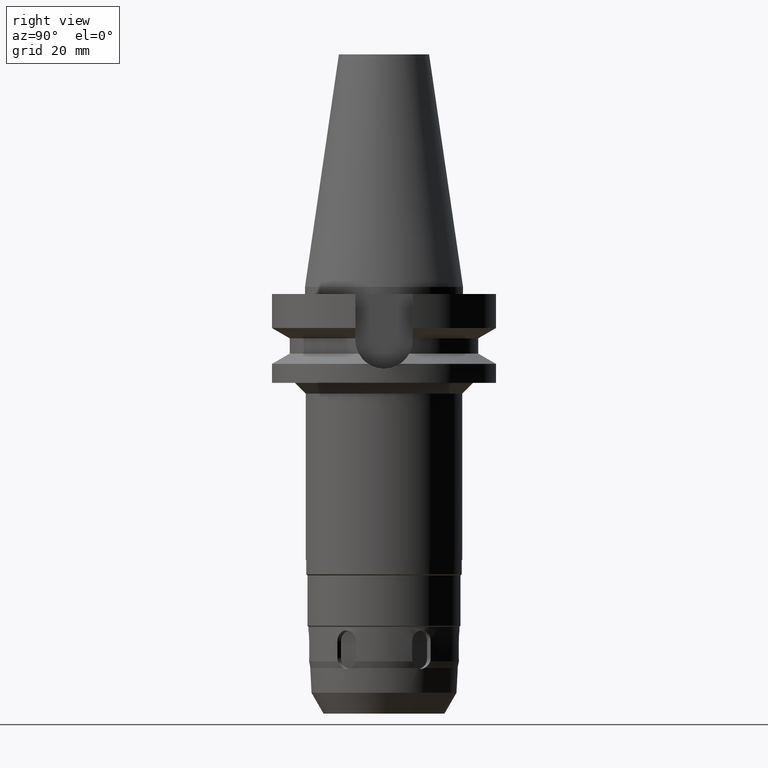
[diagram: clean part render]
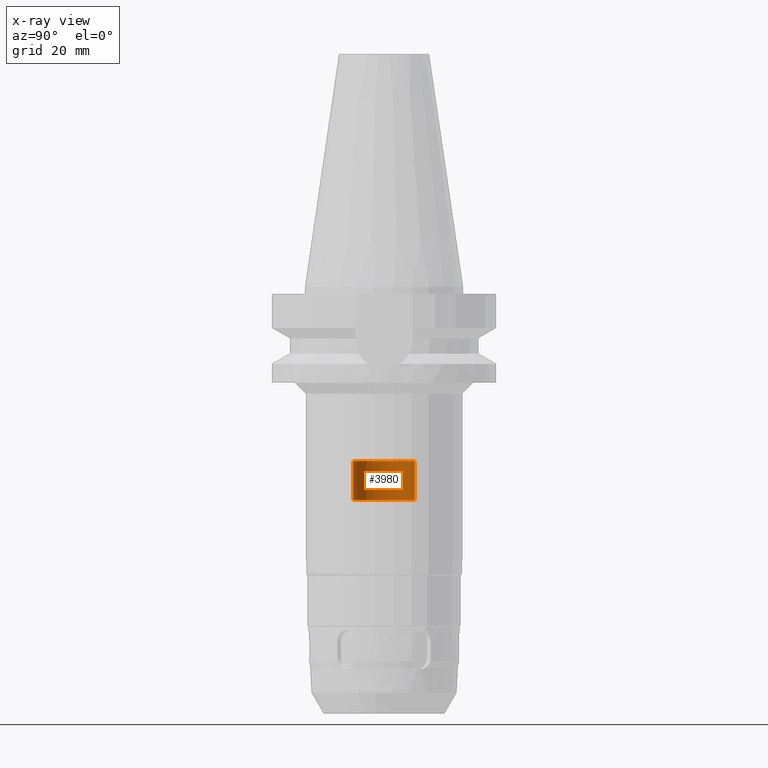
[diagram: x-ray — body ghosted, one internal face saturated and labeled with its STEP entity id]
A machine part, right view, then the same camera in x-ray: the body is ghosted and one INTERNAL B-rep face — a face not visible from any outside direction — is saturated and labeled: STEP entity #3980.
In plain terms, the highlighted cylindrical surface (edge-blend (fillet) strip) has radius 8.7 mm, axis along (0, 0, -1).
Its self-contained STEP definition (entity closure, byte-faithful):
#1993=CARTESIAN_POINT('',(0.E0,2.139090564071E-14,-6.E1));
#1994=DIRECTION('',(0.E0,0.E0,-1.E0));
#1995=DIRECTION('',(0.E0,-1.E0,0.E0));
#1996=AXIS2_PLACEMENT_3D('',#1993,#1994,#1995);
#2025=DIRECTION('',(0.E0,0.E0,1.E0));
#2026=VECTOR('',#2025,1.1E1);
#2027=CARTESIAN_POINT('',(0.E0,-8.7E0,-6.E1));
#2028=LINE('',#2027,#2026);
#2032=DIRECTION('',(0.E0,0.E0,1.E0));
#2033=VECTOR('',#2032,1.1E1);
#2034=CARTESIAN_POINT('',(0.E0,8.7E0,-6.E1));
#2035=LINE('',#2034,#2033);
#2047=CARTESIAN_POINT('',(0.E0,2.139090564071E-14,-4.9E1));
#2048=DIRECTION('',(0.E0,0.E0,1.E0));
#2049=DIRECTION('',(0.E0,1.E0,0.E0));
#2050=AXIS2_PLACEMENT_3D('',#2047,#2048,#2049);
#2311=CARTESIAN_POINT('',(0.E0,-8.7E0,-4.9E1));
#2312=CARTESIAN_POINT('',(0.E0,8.7E0,-4.9E1));
#2313=VERTEX_POINT('',#2311);
#2314=VERTEX_POINT('',#2312);
#2315=CARTESIAN_POINT('',(0.E0,8.7E0,-6.E1));
#2316=VERTEX_POINT('',#2315);
#2317=CARTESIAN_POINT('',(0.E0,-8.7E0,-6.E1));
#2318=VERTEX_POINT('',#2317);
#3966=CARTESIAN_POINT('',(0.E0,2.139090564071E-14,7.467E1));
#3967=DIRECTION('',(0.E0,0.E0,-1.E0));
#3968=DIRECTION('',(0.E0,-1.E0,0.E0));
#3969=AXIS2_PLACEMENT_3D('',#3966,#3967,#3968);
#3970=CYLINDRICAL_SURFACE('',#3969,8.7E0);
#3972=ORIENTED_EDGE('',*,*,#3971,.F.);
#3973=ORIENTED_EDGE('',*,*,#3955,.F.);
#3975=ORIENTED_EDGE('',*,*,#3974,.T.);
#3977=ORIENTED_EDGE('',*,*,#3976,.F.);
#3978=EDGE_LOOP('',(#3972,#3973,#3975,#3977));
#3979=FACE_OUTER_BOUND('',#3978,.F.);
#1997=CIRCLE('',#1996,8.7E0);
#2051=CIRCLE('',#2050,8.7E0);
#3955=EDGE_CURVE('',#2318,#2316,#1997,.T.);
#3971=EDGE_CURVE('',#2316,#2314,#2035,.T.);
#3974=EDGE_CURVE('',#2318,#2313,#2028,.T.);
#3976=EDGE_CURVE('',#2314,#2313,#2051,.T.);
#3980=ADVANCED_FACE('',(#3979),#3970,.F.);